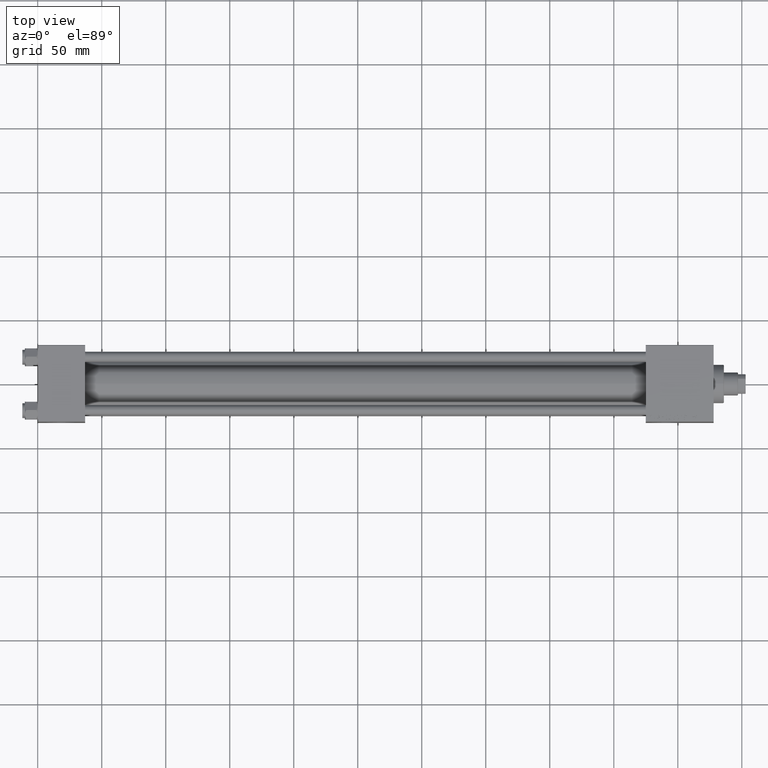
[diagram: clean part render]
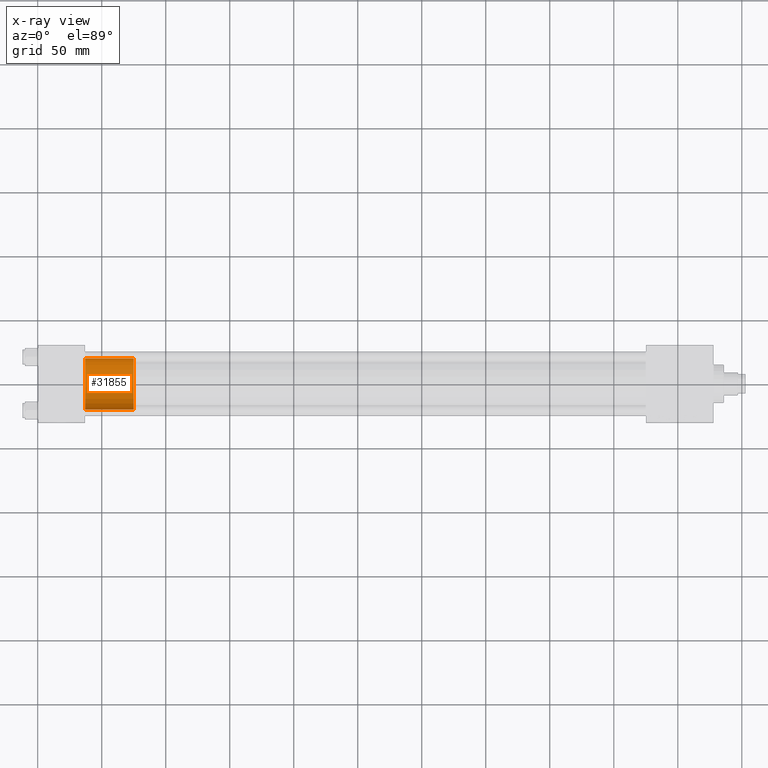
[diagram: x-ray — body ghosted, one internal face saturated and labeled with its STEP entity id]
A machine part, top view, then the same camera in x-ray: the body is ghosted and one INTERNAL B-rep face — a face not visible from any outside direction — is saturated and labeled: STEP entity #31855.
In plain terms, the highlighted cylindrical surface (edge-blend (fillet) strip) has radius 20 mm, axis along (-1, 0, 0).
Its self-contained STEP definition (entity closure, byte-faithful):
#241 = CIRCLE ( 'NONE', #5939, 20.00000000000000000 ) ;
#2745 = EDGE_CURVE ( 'NONE', #14497, #4090, #241, .T. ) ;
#4090 = VERTEX_POINT ( 'NONE', #5974 ) ;
#5241 = ORIENTED_EDGE ( 'NONE', *, *, #12100, .T. ) ;
#5468 = CARTESIAN_POINT ( 'NONE',  ( 20.00000000000000000, 2.449293598294706513E-15, 38.00000000000000000 ) ) ;
#5939 = AXIS2_PLACEMENT_3D ( 'NONE', #24042, #20752, #36262 ) ;
#5974 = CARTESIAN_POINT ( 'NONE',  ( -20.00000000000000000, 0.000000000000000000, 38.00000000000000000 ) ) ;
#7269 = VERTEX_POINT ( 'NONE', #16010 ) ;
#9402 = CARTESIAN_POINT ( 'NONE',  ( -20.00000000000000000, 0.000000000000000000, 38.00000000000000000 ) ) ;
#10992 = VECTOR ( 'NONE', #44493, 1000.000000000000000 ) ;
#12100 = EDGE_CURVE ( 'NONE', #22331, #7269, #34486, .T. ) ;
#12832 = EDGE_CURVE ( 'NONE', #14497, #22331, #13993, .T. ) ;
#13871 = CARTESIAN_POINT ( 'NONE',  ( 20.00000000000000000, 2.449293598294706513E-15, 0.000000000000000000 ) ) ;
#13893 = DIRECTION ( 'NONE',  ( -0.000000000000000000, -0.000000000000000000, -1.000000000000000000 ) ) ;
#13993 = LINE ( 'NONE', #25163, #10992 ) ;
#14141 = CARTESIAN_POINT ( 'NONE',  ( 0.000000000000000000, 0.000000000000000000, 38.00000000000000000 ) ) ;
#14346 = ORIENTED_EDGE ( 'NONE', *, *, #12832, .T. ) ;
#14497 = VERTEX_POINT ( 'NONE', #5468 ) ;
#16010 = CARTESIAN_POINT ( 'NONE',  ( -20.00000000000000000, 0.000000000000000000, 0.000000000000000000 ) ) ;
#17453 = AXIS2_PLACEMENT_3D ( 'NONE', #47719, #19791, #43918 ) ;
#17916 = ORIENTED_EDGE ( 'NONE', *, *, #2745, .F. ) ;
#18981 = ORIENTED_EDGE ( 'NONE', *, *, #32476, .F. ) ;
#19791 = DIRECTION ( 'NONE',  ( 0.000000000000000000, 0.000000000000000000, 1.000000000000000000 ) ) ;
#20752 = DIRECTION ( 'NONE',  ( 0.000000000000000000, 0.000000000000000000, 1.000000000000000000 ) ) ;
#21006 = CYLINDRICAL_SURFACE ( 'NONE', #50121, 20.00000000000000000 ) ;
#22331 = VERTEX_POINT ( 'NONE', #13871 ) ;
#24042 = CARTESIAN_POINT ( 'NONE',  ( 0.000000000000000000, 0.000000000000000000, 38.00000000000000000 ) ) ;
#25163 = CARTESIAN_POINT ( 'NONE',  ( 20.00000000000000000, 2.449293598294706513E-15, 38.00000000000000000 ) ) ;
#30640 = VECTOR ( 'NONE', #40396, 1000.000000000000000 ) ;
#31855 = ADVANCED_FACE ( 'NONE', ( #40572 ), #21006, .T. ) ;
#32476 = EDGE_CURVE ( 'NONE', #4090, #7269, #36582, .T. ) ;
#34486 = CIRCLE ( 'NONE', #17453, 20.00000000000000000 ) ;
#36262 = DIRECTION ( 'NONE',  ( 1.000000000000000000, 0.000000000000000000, 0.000000000000000000 ) ) ;
#36582 = LINE ( 'NONE', #9402, #30640 ) ;
#40396 = DIRECTION ( 'NONE',  ( -0.000000000000000000, -0.000000000000000000, -1.000000000000000000 ) ) ;
#40572 = FACE_OUTER_BOUND ( 'NONE', #49860, .T. ) ;
#43918 = DIRECTION ( 'NONE',  ( 1.000000000000000000, 0.000000000000000000, 0.000000000000000000 ) ) ;
#44493 = DIRECTION ( 'NONE',  ( -0.000000000000000000, -0.000000000000000000, -1.000000000000000000 ) ) ;
#47719 = CARTESIAN_POINT ( 'NONE',  ( 0.000000000000000000, 0.000000000000000000, 0.000000000000000000 ) ) ;
#48941 = DIRECTION ( 'NONE',  ( -1.000000000000000000, 0.000000000000000000, 0.000000000000000000 ) ) ;
#49860 = EDGE_LOOP ( 'NONE', ( #17916, #14346, #5241, #18981 ) ) ;
#50121 = AXIS2_PLACEMENT_3D ( 'NONE', #14141, #13893, #48941 ) ;